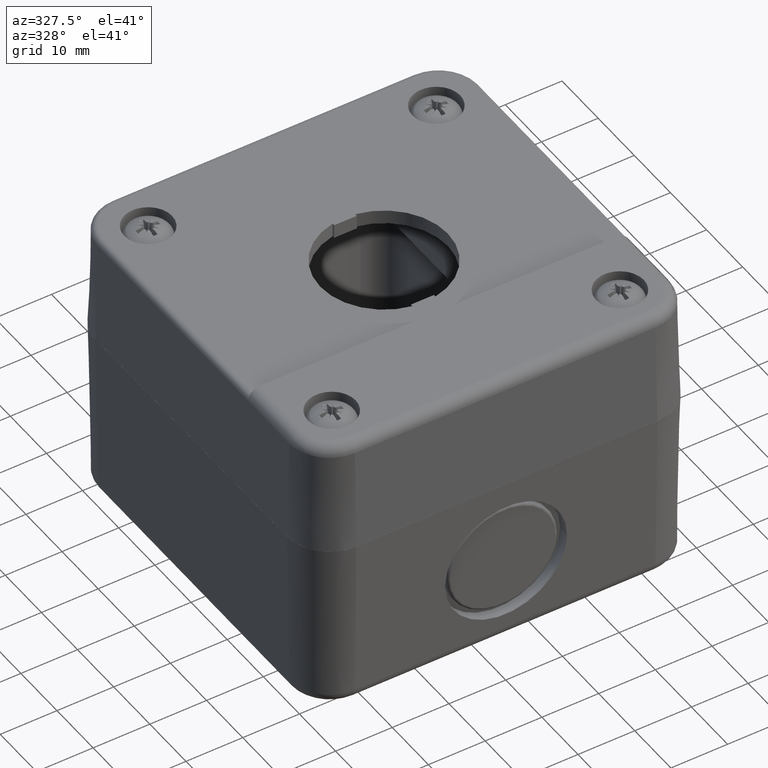
[diagram: clean part render]
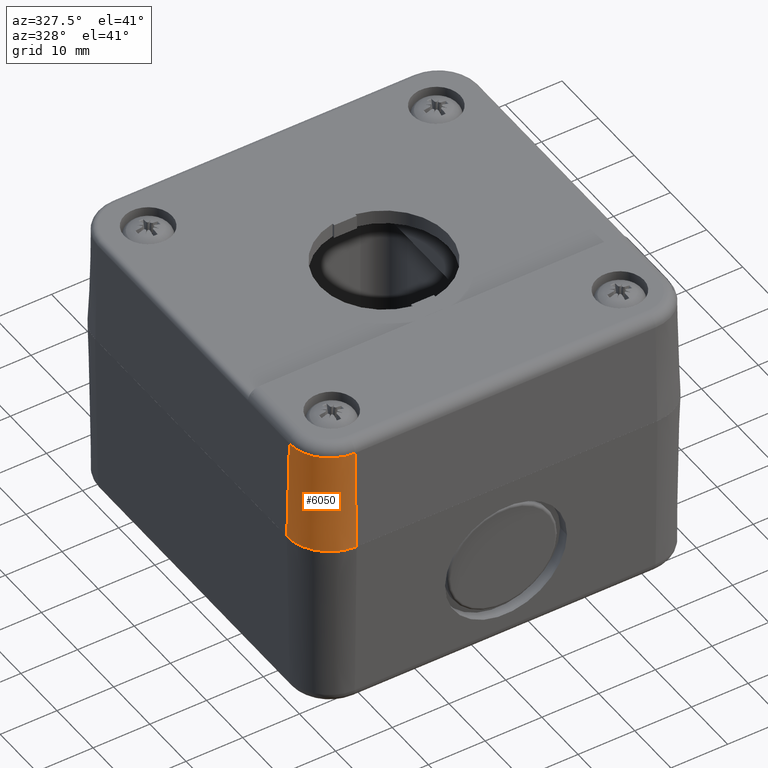
[diagram: same view with one face highlighted and labeled with its STEP entity id]
A machine part, auxiliary view. The second image highlights one B-rep face of the part: STEP entity #6050.
In plain terms, the highlighted conical surface has half-angle 1.5 deg.
Its self-contained STEP definition (entity closure, byte-faithful):
#5703=CARTESIAN_POINT('',(-34.484606492162904,24.285100308944429,1.947646103384255));
#5704=VERTEX_POINT('',#5703);
#5904=CARTESIAN_POINT('',(-27.433605584055144,31.336101217052178,1.947646103384254));
#5905=VERTEX_POINT('',#5904);
#5935=CARTESIAN_POINT('',(-27.433605584055144,24.285100308944429,1.947646103384255));
#5936=DIRECTION('',(0.0,0.0,-1.000000000000000));
#5937=DIRECTION('',(-0.707106781186548,0.707106781186548,0.0));
#5938=AXIS2_PLACEMENT_3D('',#5935,#5936,#5937);
#5939=CIRCLE('',#5938,7.051000908107762);
#5940=EDGE_CURVE('',#5704,#5905,#5939,.T.);
#6008=CARTESIAN_POINT('',(-27.433605584055144,31.808818740328164,20.0));
#6009=VERTEX_POINT('',#6008);
#6010=CARTESIAN_POINT('',(-27.433605584055144,31.336101217052178,1.947646103384254));
#6011=DIRECTION('',(0.0,0.026176948307873,0.999657324975557));
#6012=VECTOR('',#6011,18.058542107973995);
#6013=LINE('',#6010,#6012);
#6014=EDGE_CURVE('',#5905,#6009,#6013,.T.);
#6026=CARTESIAN_POINT('',(-27.433605584055144,24.285100308944429,0.0));
#6027=DIRECTION('',(0.0,0.0,1.0));
#6028=DIRECTION('',(0.0,-1.0,0.0));
#6029=AXIS2_PLACEMENT_3D('',#6026,#6027,#6028);
#6030=CONICAL_SURFACE('',#6029,7.000000000000011,1.500000000000000);
#6031=ORIENTED_EDGE('',*,*,#5940,.F.);
#6032=CARTESIAN_POINT('',(-34.957324015438893,24.285100308944429,20.0));
#6033=VERTEX_POINT('',#6032);
#6034=CARTESIAN_POINT('',(-34.484606492162904,24.285100308944429,1.947646103384255));
#6035=DIRECTION('',(-0.026176948307873,0.0,0.999657324975557));
#6036=VECTOR('',#6035,18.058542107973995);
#6037=LINE('',#6034,#6036);
#6038=EDGE_CURVE('',#5704,#6033,#6037,.T.);
#6039=ORIENTED_EDGE('',*,*,#6038,.T.);
#6040=CARTESIAN_POINT('',(-27.433605584055144,24.285100308944429,20.0));
#6041=DIRECTION('',(0.0,0.0,-1.0));
#6042=DIRECTION('',(0.0,-1.0,0.0));
#6043=AXIS2_PLACEMENT_3D('',#6040,#6041,#6042);
#6044=CIRCLE('',#6043,7.523718431383751);
#6045=EDGE_CURVE('',#6033,#6009,#6044,.T.);
#6046=ORIENTED_EDGE('',*,*,#6045,.T.);
#6047=ORIENTED_EDGE('',*,*,#6014,.F.);
#6048=EDGE_LOOP('',(#6031,#6039,#6046,#6047));
#6049=FACE_OUTER_BOUND('',#6048,.T.);
#6050=ADVANCED_FACE('',(#6049),#6030,.T.);